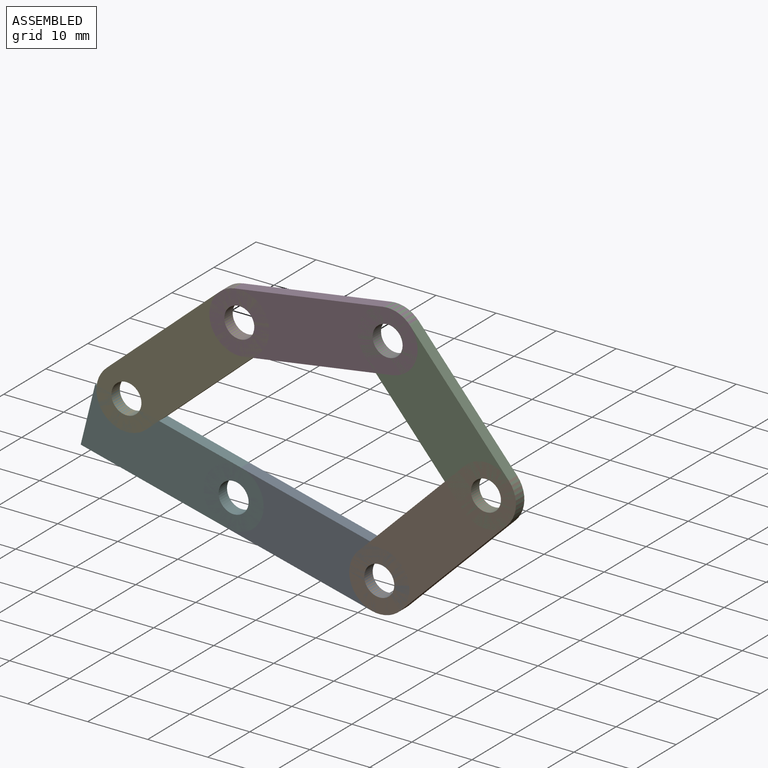
[diagram: assembled view]
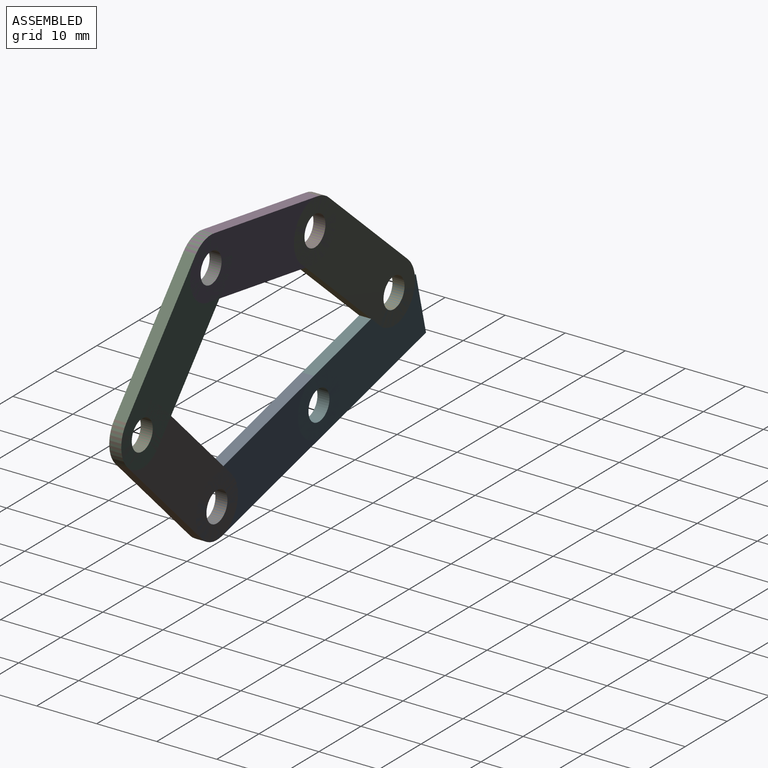
[diagram: assembled view, second angle]
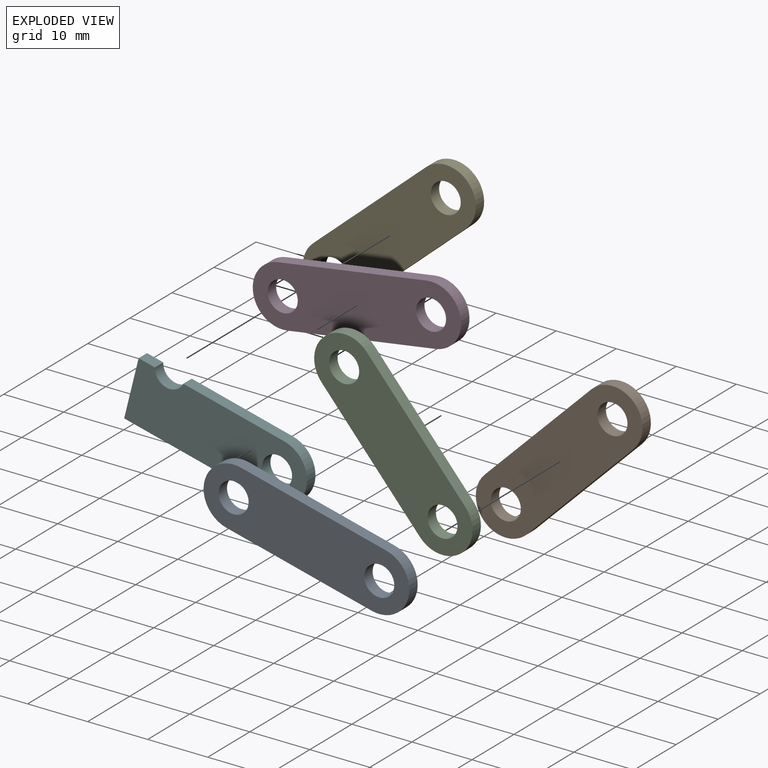
[diagram: exploded view]
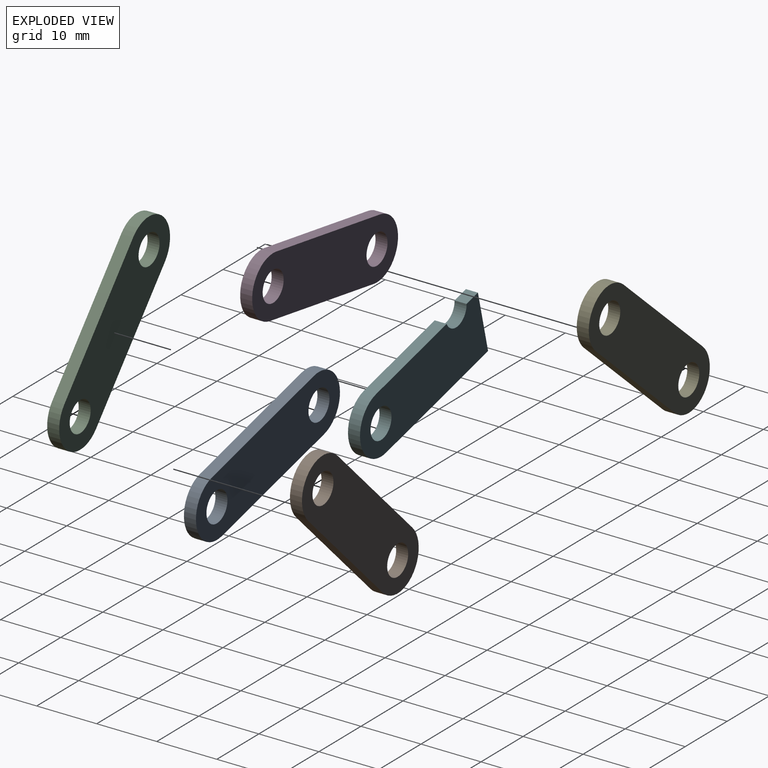
[diagram: exploded view, second angle]
ASSEMBLY  parts=6 mates=5
PART A: 8 faces, bbox 35x2x10 mm
  f0: cylinder r=5mm len=10mm, axis (0,1,0), area 31.4mm2, adj f1,f3,f6,f7
  f1: plane 25x2mm, normal (0,0,-1), area 50mm2, adj f0,f2,f6,f7
  f2: cylinder r=5mm len=10mm, axis (0,1,0), area 31.4mm2, adj f1,f3,f6,f7
  f3: plane 25x2mm, normal (0,0,1), area 50mm2, adj f0,f2,f6,f7
  f4: cylinder r=2.5mm len=5mm, axis (0,1,0), area 31.4mm2, adj f6,f7
  f5: cylinder r=2.5mm len=5mm, axis (0,1,0), area 31.4mm2, adj f6,f7
  f6: plane 35x10mm, normal (0,-1,0), area 289.3mm2, adj f0,f1,f2,f3,f4,f5
  f7: plane 35x10mm, normal (0,1,0), area 289.3mm2, adj f0,f1,f2,f3,f4,f5
PART B: same geometry as A
PART C: same geometry as A
PART D: same geometry as A
PART E: same geometry as A
PART F: 9 faces, bbox 30x2x10 mm
  f0: cylinder r=2.5mm len=4.89mm, axis (0,1,0), area 13.6mm2, adj f1,f5,f7,f8
  f1: plane 2.79x2mm, normal (0,0,1), area 5.6mm2, adj f0,f2,f7,f8
  f2: plane 10x2mm, normal (-1,0,0), area 20mm2, adj f1,f3,f7,f8
  f3: plane 25x2mm, normal (0,0,-1), area 50mm2, adj f2,f4,f7,f8
  f4: cylinder r=5mm len=10mm, axis (0,1,0), area 31.4mm2, adj f3,f5,f7,f8
  f5: plane 17.32x2mm, normal (0,0,1), area 34.6mm2, adj f0,f4,f7,f8
  f6: cylinder r=2.5mm len=5mm, axis (0,1,0), area 31.4mm2, adj f7,f8
  f7: plane 30x10mm, normal (0,-1,0), area 262.4mm2, adj f0,f1,f2,f3,f4,f5,f6
  f8: plane 30x10mm, normal (0,1,0), area 262.4mm2, adj f0,f1,f2,f3,f4,f5,f6
PLACE A rot(axis=(0,1,0),14deg) t=(0,0,0)mm
PLACE B rot(axis=(0,-1,0),44.7deg) t=(24.26,0,-6.03)mm
PLACE C rot(axis=(0,-1,0),130.9deg) t=(42.03,0,11.56)mm
PLACE D rot(axis=(0,1,0),171.2deg) t=(25.65,0,30.45)mm
PLACE E rot(axis=(0,1,0),138.8deg) t=(0.95,0,26.61)mm
PLACE F rot(axis=(0,1,0),14deg) t=(0,0,0)mm
MATE revolute D.f5 <-> E.f4  axis (0,1,0) through (0.95,0,26.61)mm
MATE revolute A.f4 <-> F.f6  axis (0,1,0) through (0,0,0)mm
MATE revolute C.f5 <-> D.f4  axis (0,1,0) through (25.65,0,30.45)mm
MATE revolute A.f5 <-> B.f4  axis (0,1,0) through (24.26,0,-6.03)mm
MATE revolute B.f5 <-> C.f4  axis (0,1,0) through (42.03,0,11.56)mm
